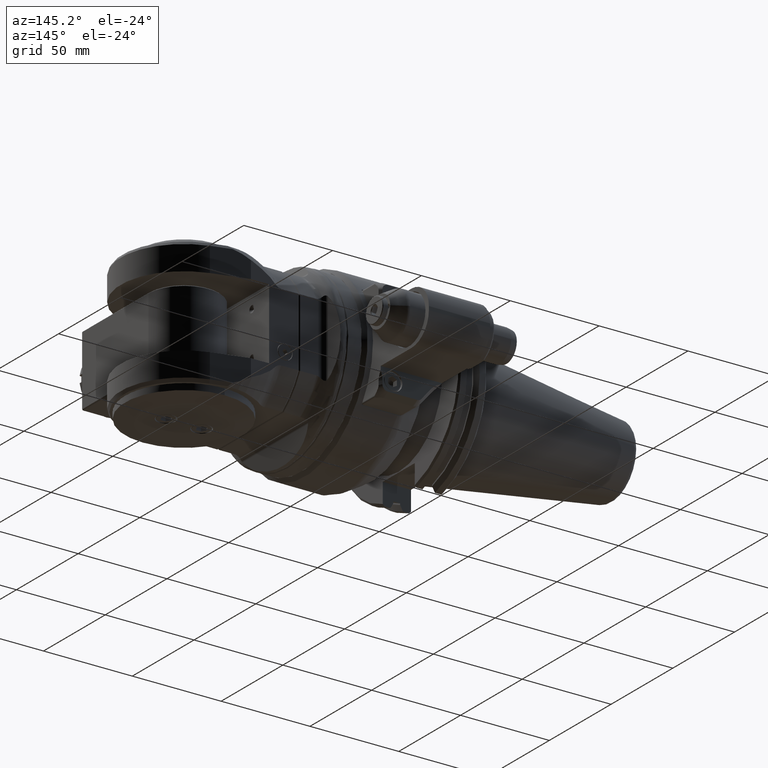
[diagram: clean part render]
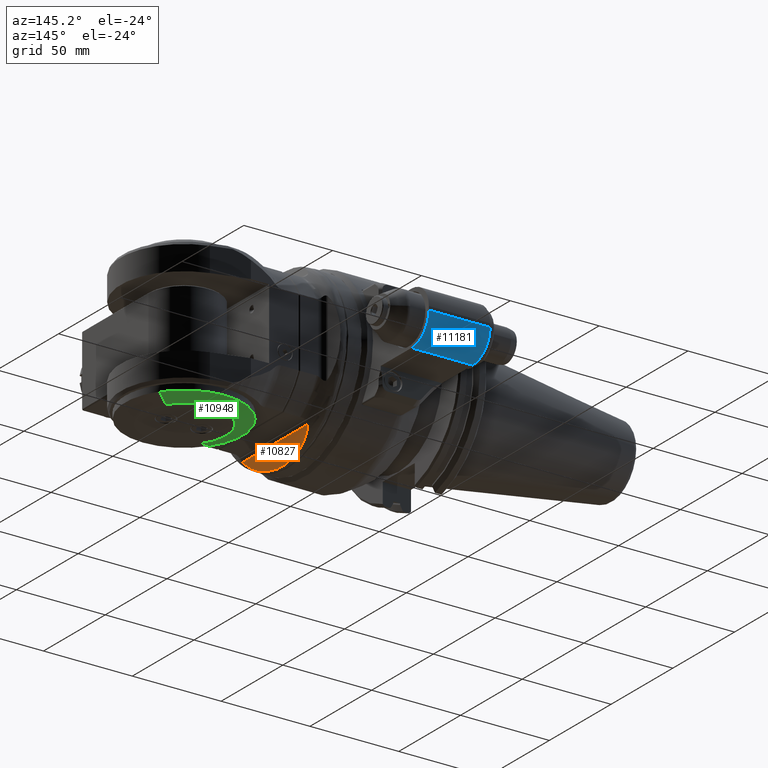
[diagram: same view with three faces highlighted in distinct colors, each labeled with its STEP entity id]
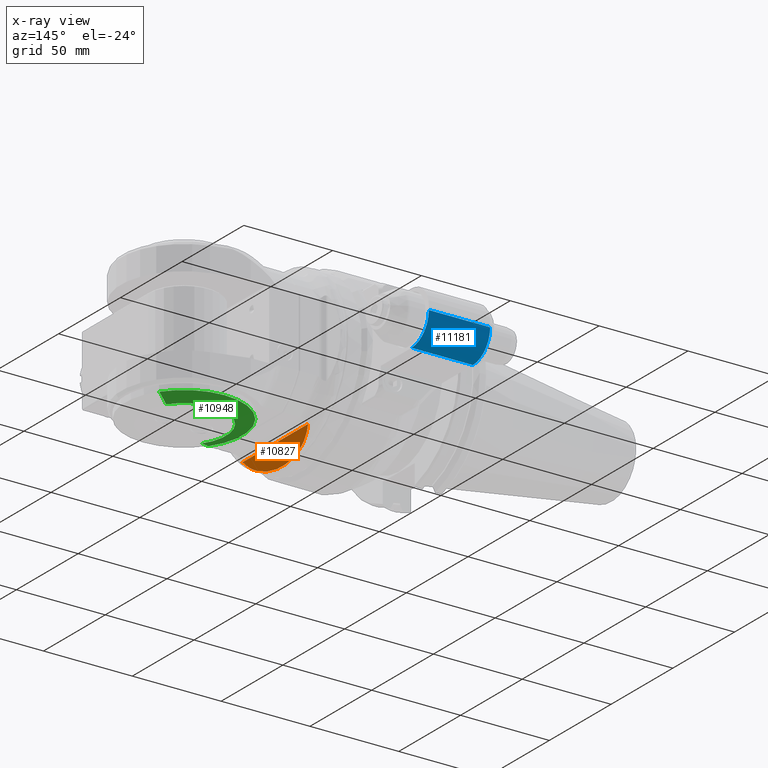
[diagram: x-ray of the same camera — body ghosted, the three highlighted faces saturated]
A machine part, auxiliary view with three faces highlighted in distinct colors.
The next image is the same camera in x-ray (body ghosted, the three faces saturated) — at least one of them is partly hidden behind the body in this view.
Their STEP definitions:

[orange] entity #10827 — the highlighted planar face has unit normal (-0.9397, -0, 0.342).
#71=ELLIPSE('',#11635,39.9641292782576,34.978190480661);
#73=ELLIPSE('',#11640,39.9641292782576,34.978190480661);
#1073=FACE_OUTER_BOUND('',#1752,.T.);
#1752=EDGE_LOOP('',(#7598,#7599,#7600,#7601));
#2526=LINE('',#16826,#3323);
#3323=VECTOR('',#13111,53.07718683465);
#4042=B_SPLINE_CURVE_WITH_KNOTS('',3,(#16728,#16729,#16730,#16731,#16732,
#16733,#16734,#16735,#16736,#16737,#16738,#16739,#16740,#16741,#16742,#16743,
#16744,#16745,#16746,#16747,#16748,#16749,#16750),.UNSPECIFIED.,.F.,.F.,
(4,2,2,2,2,3,2,2,2,2,4),(8.13167988471684,8.57137343749194,8.82841810237709,
9.08546276726223,9.8284935986504,10.5715244300386,11.3145552614267,12.0575860928149,
12.3146307577001,12.5716754225852,13.0113689753603),.UNSPECIFIED.);
#4544=VERTEX_POINT('',#16725);
#4545=VERTEX_POINT('',#16727);
#4549=VERTEX_POINT('',#16780);
#4551=VERTEX_POINT('',#16825);
#5725=EDGE_CURVE('',#4544,#4545,#4042,.T.);
#5730=EDGE_CURVE('',#4544,#4549,#71,.T.);
#5735=EDGE_CURVE('',#4551,#4549,#2526,.T.);
#5738=EDGE_CURVE('',#4551,#4545,#73,.T.);
#7598=ORIENTED_EDGE('',*,*,#5735,.F.);
#7599=ORIENTED_EDGE('',*,*,#5738,.T.);
#7600=ORIENTED_EDGE('',*,*,#5725,.F.);
#7601=ORIENTED_EDGE('',*,*,#5730,.T.);
#10432=PLANE('',#11639);
#10827=ADVANCED_FACE('',(#1073),#10432,.F.);
#11635=AXIS2_PLACEMENT_3D('',#16792,#13103,#13104);
#11639=AXIS2_PLACEMENT_3D('',#16849,#13112,#13113);
#11640=AXIS2_PLACEMENT_3D('',#16850,#13114,#13115);
#13103=DIRECTION('center_axis',(0.939692620785897,-0.342020143325699,0.));
#13104=DIRECTION('ref_axis',(0.342020143325699,0.939692620785897,3.91149274837992E-14));
#13111=DIRECTION('',(-4.176734804121E-14,-1.153956859344E-13,-1.));
#13112=DIRECTION('center_axis',(-0.939692620785897,0.342020143325699,0.));
#13113=DIRECTION('ref_axis',(-0.342020143325699,-0.939692620785897,0.));
#13114=DIRECTION('center_axis',(0.939692620785897,-0.342020143325699,0.));
#13115=DIRECTION('ref_axis',(0.342020143325699,0.939692620785897,3.91149274837992E-14));
#16725=CARTESIAN_POINT('',(44.46446609407,-41.09258344308,-23.8961622378));
#16727=CARTESIAN_POINT('',(44.46446609407,-41.09258344308,23.8961622378));
#16728=CARTESIAN_POINT('Ctrl Pts',(44.4644660940696,-41.0925834430775,-23.8961622377976));
#16729=CARTESIAN_POINT('Ctrl Pts',(44.0807184649765,-42.1469213887799,-22.8464613976703));
#16730=CARTESIAN_POINT('Ctrl Pts',(43.726290847286,-43.1207032652155,-21.4864127810897));
#16731=CARTESIAN_POINT('Ctrl Pts',(43.2971225944904,-44.2998333489183,-19.5321122212607));
#16732=CARTESIAN_POINT('Ctrl Pts',(43.1365041596146,-44.7411288718876,-18.7160057555203));
#16733=CARTESIAN_POINT('Ctrl Pts',(42.8431706228816,-45.54705614043,-17.0414240138323));
#16734=CARTESIAN_POINT('Ctrl Pts',(42.7102917433109,-45.9121378615731,-16.1831940298494));
#16735=CARTESIAN_POINT('Ctrl Pts',(42.2776555728192,-47.1007959708381,-13.0989264161906));
#16736=CARTESIAN_POINT('Ctrl Pts',(42.016186004455,-47.8191777057933,-10.4964622275559));
#16737=CARTESIAN_POINT('Ctrl Pts',(41.6790185904968,-48.7455375622191,-5.18530105176294));
#16738=CARTESIAN_POINT('Ctrl Pts',(41.6030160877912,-48.9543527222249,-2.47676943796058));
#16739=CARTESIAN_POINT('Ctrl Pts',(41.6030160877912,-48.9543527222249,0.));
#16740=CARTESIAN_POINT('Ctrl Pts',(41.6030160877912,-48.9543527222249,2.47676943796057));
#16741=CARTESIAN_POINT('Ctrl Pts',(41.6790185904969,-48.7455375622191,5.18530105176294));
#16742=CARTESIAN_POINT('Ctrl Pts',(42.016186004455,-47.8191777057933,10.4964622275559));
#16743=CARTESIAN_POINT('Ctrl Pts',(42.2776555728192,-47.1007959708381,13.0989264161906));
#16744=CARTESIAN_POINT('Ctrl Pts',(42.7102917433109,-45.9121378615731,16.1831940298494));
#16745=CARTESIAN_POINT('Ctrl Pts',(42.8431706228816,-45.54705614043,17.0414240138323));
#16746=CARTESIAN_POINT('Ctrl Pts',(43.1365041596146,-44.7411288718876,18.7160057555203));
#16747=CARTESIAN_POINT('Ctrl Pts',(43.2971225944904,-44.2998333489183,19.5321122212607));
#16748=CARTESIAN_POINT('Ctrl Pts',(43.726290847286,-43.1207032652155,21.4864127810897));
#16749=CARTESIAN_POINT('Ctrl Pts',(44.0807184649765,-42.1469213887799,22.8464613976703));
#16750=CARTESIAN_POINT('Ctrl Pts',(44.4644660940696,-41.0925834430775,23.8961622377976));
#16780=CARTESIAN_POINT('',(45.5420596697,-38.1319194267,-26.53859341732));
#16792=CARTESIAN_POINT('Origin',(54.4460026210877,-13.6685372236364,8.88178419700125E-15));
#16825=CARTESIAN_POINT('',(45.5420596697,-38.13191942669,26.53859341733));
#16826=CARTESIAN_POINT('',(45.5420596697,-38.13191942669,26.53859341733));
#16849=CARTESIAN_POINT('Origin',(46.5,-35.5,58.8000024));
#16850=CARTESIAN_POINT('Origin',(54.4460026210877,-13.6685372236364,8.88178419700125E-15));

[blue] entity #11181 — the highlighted cylindrical surface (edge-blend (fillet) strip) has radius 14 mm, axis along (1, 0, 0).
#170=CYLINDRICAL_SURFACE('',#12262,14.);
#807=CIRCLE('',#12227,14.);
#818=CIRCLE('',#12247,14.);
#1427=FACE_OUTER_BOUND('',#2165,.T.);
#2165=EDGE_LOOP('',(#9341,#9342,#9343,#9344));
#2975=LINE('',#19190,#3772);
#2976=LINE('',#19192,#3773);
#3772=VECTOR('',#14806,34.5);
#3773=VECTOR('',#14809,34.5);
#5076=VERTEX_POINT('',#19062);
#5077=VERTEX_POINT('',#19064);
#5106=VERTEX_POINT('',#19150);
#5107=VERTEX_POINT('',#19152);
#6525=EDGE_CURVE('',#5076,#5077,#807,.T.);
#6566=EDGE_CURVE('',#5106,#5107,#818,.T.);
#6586=EDGE_CURVE('',#5106,#5077,#2975,.T.);
#6587=EDGE_CURVE('',#5076,#5107,#2976,.T.);
#9341=ORIENTED_EDGE('',*,*,#6586,.T.);
#9342=ORIENTED_EDGE('',*,*,#6525,.F.);
#9343=ORIENTED_EDGE('',*,*,#6587,.T.);
#9344=ORIENTED_EDGE('',*,*,#6566,.F.);
#11181=ADVANCED_FACE('',(#1427),#170,.T.);
#12227=AXIS2_PLACEMENT_3D('',#19065,#14698,#14699);
#12247=AXIS2_PLACEMENT_3D('',#19153,#14764,#14765);
#12262=AXIS2_PLACEMENT_3D('',#19191,#14807,#14808);
#14698=DIRECTION('center_axis',(1.,0.,0.));
#14699=DIRECTION('ref_axis',(0.,0.,-1.));
#14764=DIRECTION('center_axis',(-1.,0.,0.));
#14765=DIRECTION('ref_axis',(0.,1.,0.));
#14806=DIRECTION('',(1.,0.,0.));
#14807=DIRECTION('center_axis',(1.,0.,0.));
#14808=DIRECTION('ref_axis',(0.,1.,0.));
#14809=DIRECTION('',(-1.,0.,0.));
#19062=CARTESIAN_POINT('',(-17.,82.25,-15.));
#19064=CARTESIAN_POINT('',(-17.,96.25,-1.));
#19065=CARTESIAN_POINT('Origin',(-17.,82.25,-1.));
#19150=CARTESIAN_POINT('',(-51.5,96.25,-1.));
#19152=CARTESIAN_POINT('',(-51.5,82.25,-15.));
#19153=CARTESIAN_POINT('Origin',(-51.5,82.25,-1.));
#19190=CARTESIAN_POINT('',(-51.5,96.25,-1.));
#19191=CARTESIAN_POINT('Origin',(-43.,82.25,-1.));
#19192=CARTESIAN_POINT('',(-17.,82.25,-15.));

[green] entity #10948 — the highlighted conical surface has half-angle 75 deg.
#305=CONICAL_SURFACE('',#11845,28.33493649054,1.30899693899575);
#626=CIRCLE('',#11801,33.);
#628=CIRCLE('',#11803,33.);
#629=CIRCLE('',#11806,23.66987298108);
#1194=FACE_OUTER_BOUND('',#1897,.T.);
#1897=EDGE_LOOP('',(#8170,#8171,#8172,#8173,#8174));
#2645=LINE('',#17320,#3442);
#2678=LINE('',#17475,#3475);
#3442=VECTOR('',#13562,9.65925826289064);
#3475=VECTOR('',#13675,9.65925826289064);
#4685=VERTEX_POINT('',#17305);
#4686=VERTEX_POINT('',#17307);
#4689=VERTEX_POINT('',#17313);
#4690=VERTEX_POINT('',#17317);
#4692=VERTEX_POINT('',#17323);
#5932=EDGE_CURVE('',#4685,#4686,#626,.T.);
#5936=EDGE_CURVE('',#4689,#4685,#628,.T.);
#5938=EDGE_CURVE('',#4690,#4689,#2645,.T.);
#5941=EDGE_CURVE('',#4692,#4690,#629,.T.);
#5999=EDGE_CURVE('',#4692,#4686,#2678,.T.);
#8170=ORIENTED_EDGE('',*,*,#5941,.F.);
#8171=ORIENTED_EDGE('',*,*,#5999,.T.);
#8172=ORIENTED_EDGE('',*,*,#5932,.F.);
#8173=ORIENTED_EDGE('',*,*,#5936,.F.);
#8174=ORIENTED_EDGE('',*,*,#5938,.F.);
#10948=ADVANCED_FACE('',(#1194),#305,.T.);
#11801=AXIS2_PLACEMENT_3D('',#17308,#13551,#13552);
#11803=AXIS2_PLACEMENT_3D('',#17315,#13557,#13558);
#11806=AXIS2_PLACEMENT_3D('',#17326,#13567,#13568);
#11845=AXIS2_PLACEMENT_3D('',#17477,#13677,#13678);
#13551=DIRECTION('center_axis',(0.,1.,0.));
#13552=DIRECTION('ref_axis',(0.,0.,-1.));
#13557=DIRECTION('center_axis',(0.,1.,0.));
#13558=DIRECTION('ref_axis',(0.,0.,-1.));
#13562=DIRECTION('',(0.79124011523623,0.25881904510251,-0.554032293222321));
#13567=DIRECTION('center_axis',(0.,-1.,0.));
#13568=DIRECTION('ref_axis',(-0.819152044289016,0.,0.573576436351011));
#13675=DIRECTION('',(-0.79124011523623,0.25881904510251,0.554032293222321));
#13677=DIRECTION('center_axis',(0.,1.,0.));
#13678=DIRECTION('ref_axis',(-0.57357643635143,0.,-0.819152044288723));
#17305=CARTESIAN_POINT('',(97.,-39.,-33.));
#17307=CARTESIAN_POINT('',(69.96798253846,-39.,18.9280223996));
#17308=CARTESIAN_POINT('Origin',(97.,-39.,0.));
#17313=CARTESIAN_POINT('',(124.03201746154,-39.,-18.92802239958));
#17315=CARTESIAN_POINT('Origin',(97.,-39.,0.));
#17317=CARTESIAN_POINT('',(116.38922484051,-41.5,-13.57648139337));
#17320=CARTESIAN_POINT('',(116.38922484051,-41.5,-13.57648139337));
#17323=CARTESIAN_POINT('',(77.61077515949,-41.5,13.5764813934));
#17326=CARTESIAN_POINT('Origin',(97.,-41.5,0.));
#17475=CARTESIAN_POINT('',(77.61077515949,-41.5,13.5764813934));
#17477=CARTESIAN_POINT('Origin',(97.,-40.25,0.));